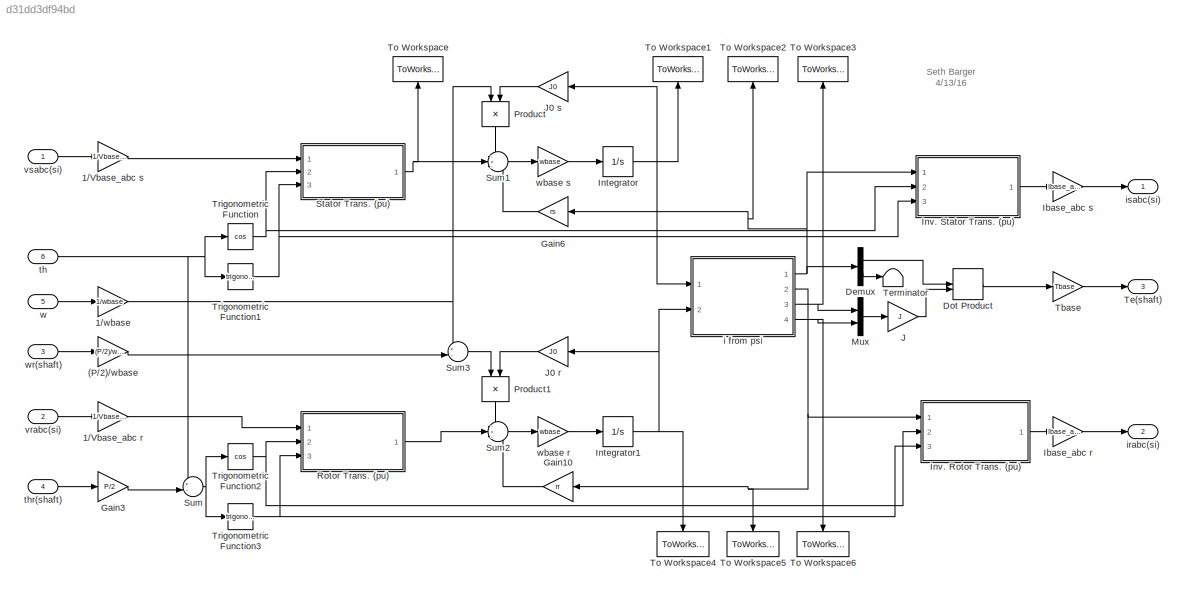
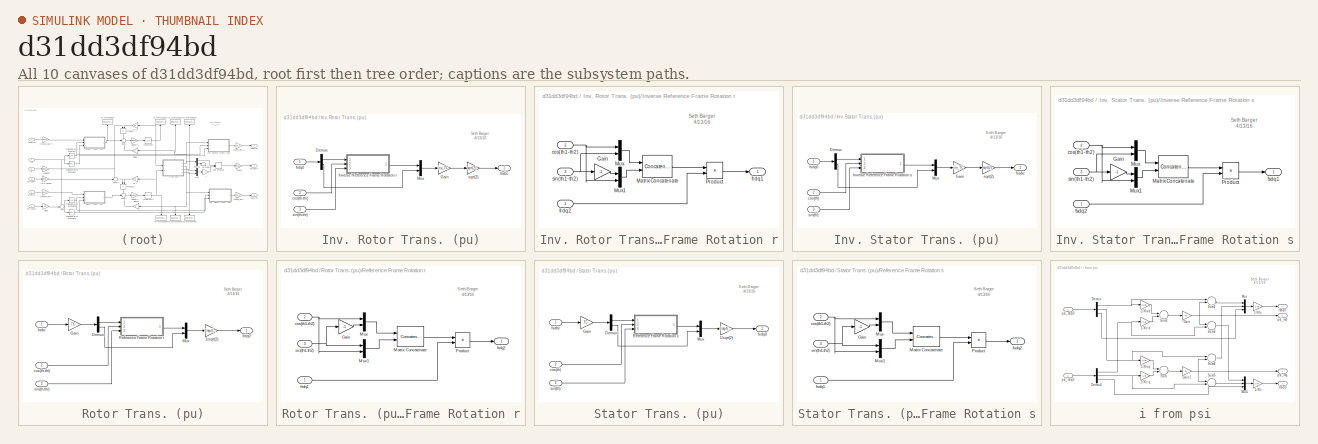
[diagram: thumbnail index - all 10 canvases of the model, root first then tree order]
MODEL slx_d31dd3df94bd
KIND model
CONFIG AbsTol = auto
CONFIG FixedStep = auto
CONFIG MaxStep = auto
CONFIG MinStep = auto
CONFIG RelTol = 1e-3
CONFIG SampleTimeConstraint = Unconstrained
CONFIG Solver = VariableStepAuto
CONFIG SolverMode = Auto
CONFIG SolverName = VariableStepAuto
CONFIG StartTime = 0.0
CONFIG StopTime = 10.0
BLOCK [Gain] (P//2)//wbase
  Gain = (P/2)/wbase
  OutDataTypeStr = Inherit: Inherit via internal rule
  ParamDataTypeStr = Inherit: Inherit via internal rule
  SaturateOnIntegerOverflow = off
BLOCK [Gain] 1//Vbase_abc r
  Gain = 1/Vbase_abc
  OutDataTypeStr = Inherit: Inherit via internal rule
  ParamDataTypeStr = Inherit: Inherit via internal rule
  SaturateOnIntegerOverflow = off
BLOCK [Gain] 1//Vbase_abc s
  Gain = 1/Vbase_abc
  OutDataTypeStr = Inherit: Inherit via internal rule
  ParamDataTypeStr = Inherit: Inherit via internal rule
  SaturateOnIntegerOverflow = off
BLOCK [Gain] 1//wbase
  Gain = 1/wbase
  OutDataTypeStr = Inherit: Inherit via internal rule
  ParamDataTypeStr = Inherit: Inherit via internal rule
  SaturateOnIntegerOverflow = off
BLOCK [Demux] Demux
  DisplayOption = bar
  Outputs = [2,1]
  Ports = [1, 2]
BLOCK [DotProduct] Dot Product
  OutDataTypeStr = Inherit: Inherit via internal rule
BLOCK [Gain] Gain10
  Gain = rr
  OutDataTypeStr = Inherit: Inherit via internal rule
  ParamDataTypeStr = Inherit: Inherit via internal rule
  SaturateOnIntegerOverflow = off
BLOCK [Gain] Gain3
  Gain = P/2
  OutDataTypeStr = Inherit: Inherit via internal rule
  ParamDataTypeStr = Inherit: Inherit via internal rule
  SaturateOnIntegerOverflow = off
BLOCK [Gain] Gain6
  Gain = rs
  OutDataTypeStr = Inherit: Inherit via internal rule
  ParamDataTypeStr = Inherit: Inherit via internal rule
  SaturateOnIntegerOverflow = off
BLOCK [Gain] Ibase_abc r
  Gain = Ibase_abc
  OutDataTypeStr = Inherit: Inherit via internal rule
  ParamDataTypeStr = Inherit: Inherit via internal rule
  SaturateOnIntegerOverflow = off
BLOCK [Gain] Ibase_abc s
  Gain = Ibase_abc
  OutDataTypeStr = Inherit: Inherit via internal rule
  ParamDataTypeStr = Inherit: Inherit via internal rule
  SaturateOnIntegerOverflow = off
BLOCK [Integrator] Integrator
  InitialCondition = psi_sdq0_initial_condition
  Ports = [1, 1]
BLOCK [Integrator] Integrator1
  InitialCondition = psi_rdq0_initial_condition
  Ports = [1, 1]
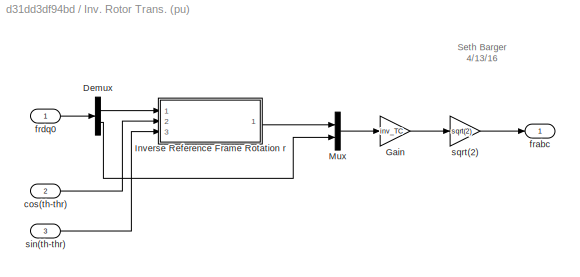
BLOCK [SubSystem] Inv. Rotor Trans. (pu)
  Ports = [3, 1]
  RequestExecContextInheritance = off
  Variant = off
BLOCK [Demux] Inv. Rotor Trans. (pu)/Demux
  DisplayOption = bar
  Outputs = [2,1]
  Ports = [1, 2]
BLOCK [Gain] Inv. Rotor Trans. (pu)/Gain
  Gain = inv_TC
  Multiplication = Matrix(K*u) (u vector)
  OutDataTypeStr = Inherit: Inherit via internal rule
  ParamDataTypeStr = Inherit: Inherit via internal rule
  SaturateOnIntegerOverflow = off
BLOCK [SubSystem] Inv. Rotor Trans. (pu)/Inverse Reference Frame Rotation r
  Ports = [3, 1]
  RequestExecContextInheritance = off
  Variant = off
BLOCK [Gain] Inv. Rotor Trans. (pu)/Inverse Reference Frame Rotation r/Gain
  Gain = -1
  OutDataTypeStr = Inherit: Inherit via internal rule
  ParamDataTypeStr = Inherit: Inherit via internal rule
  SaturateOnIntegerOverflow = off
BLOCK [Concatenate] Inv. Rotor Trans. (pu)/Inverse Reference Frame Rotation r/Matrix Concatenate
  ConcatenateDimension = 2
  Mode = Multidimensional array
  Ports = [2, 1]
BLOCK [Mux] Inv. Rotor Trans. (pu)/Inverse Reference Frame Rotation r/Mux
  DisplayOption = bar
  Inputs = 2
  Ports = [2, 1]
BLOCK [Mux] Inv. Rotor Trans. (pu)/Inverse Reference Frame Rotation r/Mux1
  DisplayOption = bar
  Inputs = 2
  Ports = [2, 1]
BLOCK [Product] Inv. Rotor Trans. (pu)/Inverse Reference Frame Rotation r/Product
  InputSameDT = off
  Multiplication = Matrix(*)
  OutDataTypeStr = Inherit: Inherit via internal rule
  Ports = [2, 1]
  RndMeth = Floor
  SaturateOnIntegerOverflow = off
BLOCK [Inport] Inv. Rotor Trans. (pu)/Inverse Reference Frame Rotation r/cos(th1-th2)
  IconDisplay = Port number
  Port = 2
BLOCK [Outport] Inv. Rotor Trans. (pu)/Inverse Reference Frame Rotation r/frdq1
  IconDisplay = Port number
BLOCK [Inport] Inv. Rotor Trans. (pu)/Inverse Reference Frame Rotation r/frdq2
  IconDisplay = Port number
BLOCK [Inport] Inv. Rotor Trans. (pu)/Inverse Reference Frame Rotation r/sin(th1-th2)
  IconDisplay = Port number
  Port = 3
BLOCK [Mux] Inv. Rotor Trans. (pu)/Mux
  DisplayOption = bar
  Inputs = [2,1]
  Ports = [2, 1]
BLOCK [Inport] Inv. Rotor Trans. (pu)/cos(th-thr)
  IconDisplay = Port number
  Port = 2
BLOCK [Outport] Inv. Rotor Trans. (pu)/frabc
  IconDisplay = Port number
BLOCK [Inport] Inv. Rotor Trans. (pu)/frdq0
  IconDisplay = Port number
BLOCK [Inport] Inv. Rotor Trans. (pu)/sin(th-thr)
  IconDisplay = Port number
  Port = 3
BLOCK [Gain] Inv. Rotor Trans. (pu)/sqrt(2)
  Gain = sqrt(2)
  OutDataTypeStr = Inherit: Inherit via internal rule
  ParamDataTypeStr = Inherit: Inherit via internal rule
  SaturateOnIntegerOverflow = off
BLOCK [SubSystem] Inv. Stator Trans. (pu)
  Ports = [3, 1]
  RequestExecContextInheritance = off
  Variant = off
BLOCK [Demux] Inv. Stator Trans. (pu)/Demux
  DisplayOption = bar
  Outputs = [2,1]
  Ports = [1, 2]
BLOCK [Gain] Inv. Stator Trans. (pu)/Gain
  Gain = inv_TC
  Multiplication = Matrix(K*u) (u vector)
  OutDataTypeStr = Inherit: Inherit via internal rule
  ParamDataTypeStr = Inherit: Inherit via internal rule
  SaturateOnIntegerOverflow = off
BLOCK [SubSystem] Inv. Stator Trans. (pu)/Inverse Reference Frame Rotation s
  Ports = [3, 1]
  RequestExecContextInheritance = off
  Variant = off
BLOCK [Gain] Inv. Stator Trans. (pu)/Inverse Reference Frame Rotation s/Gain
  Gain = -1
  OutDataTypeStr = Inherit: Inherit via internal rule
  ParamDataTypeStr = Inherit: Inherit via internal rule
  SaturateOnIntegerOverflow = off
BLOCK [Concatenate] Inv. Stator Trans. (pu)/Inverse Reference Frame Rotation s/Matrix Concatenate
  ConcatenateDimension = 2
  Mode = Multidimensional array
  Ports = [2, 1]
BLOCK [Mux] Inv. Stator Trans. (pu)/Inverse Reference Frame Rotation s/Mux
  DisplayOption = bar
  Inputs = 2
  Ports = [2, 1]
BLOCK [Mux] Inv. Stator Trans. (pu)/Inverse Reference Frame Rotation s/Mux1
  DisplayOption = bar
  Inputs = 2
  Ports = [2, 1]
BLOCK [Product] Inv. Stator Trans. (pu)/Inverse Reference Frame Rotation s/Product
  InputSameDT = off
  Multiplication = Matrix(*)
  OutDataTypeStr = Inherit: Inherit via internal rule
  Ports = [2, 1]
  RndMeth = Floor
  SaturateOnIntegerOverflow = off
BLOCK [Inport] Inv. Stator Trans. (pu)/Inverse Reference Frame Rotation s/cos(th1-th2)
  IconDisplay = Port number
  Port = 2
BLOCK [Outport] Inv. Stator Trans. (pu)/Inverse Reference Frame Rotation s/fsdq1
  IconDisplay = Port number
BLOCK [Inport] Inv. Stator Trans. (pu)/Inverse Reference Frame Rotation s/fsdq2
  IconDisplay = Port number
BLOCK [Inport] Inv. Stator Trans. (pu)/Inverse Reference Frame Rotation s/sin(th1-th2)
  IconDisplay = Port number
  Port = 3
BLOCK [Mux] Inv. Stator Trans. (pu)/Mux
  DisplayOption = bar
  Inputs = [2,1]
  Ports = [2, 1]
BLOCK [Inport] Inv. Stator Trans. (pu)/cos(th)
  IconDisplay = Port number
  Port = 2
BLOCK [Outport] Inv. Stator Trans. (pu)/fsabc
  IconDisplay = Port number
BLOCK [Inport] Inv. Stator Trans. (pu)/fsdq0
  IconDisplay = Port number
BLOCK [Inport] Inv. Stator Trans. (pu)/sin(th)
  IconDisplay = Port number
  Port = 3
BLOCK [Gain] Inv. Stator Trans. (pu)/sqrt(2)
  Gain = sqrt(2)
  OutDataTypeStr = Inherit: Inherit via internal rule
  ParamDataTypeStr = Inherit: Inherit via internal rule
  SaturateOnIntegerOverflow = off
BLOCK [Gain] J 
  Gain = J
  Multiplication = Matrix(K*u) (u vector)
  OutDataTypeStr = Inherit: Inherit via internal rule
  ParamDataTypeStr = Inherit: Inherit via internal rule
  SaturateOnIntegerOverflow = off
BLOCK [Gain] J0 r
  Gain = J0
  Multiplication = Matrix(K*u) (u vector)
  OutDataTypeStr = Inherit: Inherit via internal rule
  ParamDataTypeStr = Inherit: Inherit via internal rule
  SaturateOnIntegerOverflow = off
BLOCK [Gain] J0 s
  Gain = J0
  Multiplication = Matrix(K*u) (u vector)
  OutDataTypeStr = Inherit: Inherit via internal rule
  ParamDataTypeStr = Inherit: Inherit via internal rule
  SaturateOnIntegerOverflow = off
BLOCK [Mux] Mux
  DisplayOption = bar
  Inputs = 2
  Ports = [2, 1]
BLOCK [Product] Product
  InputSameDT = off
  OutDataTypeStr = Inherit: Inherit via internal rule
  Ports = [2, 1]
  RndMeth = Floor
  SaturateOnIntegerOverflow = off
BLOCK [Product] Product1
  InputSameDT = off
  OutDataTypeStr = Inherit: Inherit via internal rule
  Ports = [2, 1]
  RndMeth = Floor
  SaturateOnIntegerOverflow = off
BLOCK [SubSystem] Rotor Trans. (pu)
  Ports = [3, 1]
  RequestExecContextInheritance = off
  Variant = off
BLOCK [Gain] Rotor Trans. (pu)/1//sqrt(2)
  Gain = 1/sqrt(2)
  OutDataTypeStr = Inherit: Inherit via internal rule
  ParamDataTypeStr = Inherit: Inherit via internal rule
  SaturateOnIntegerOverflow = off
BLOCK [Demux] Rotor Trans. (pu)/Demux
  DisplayOption = bar
  Outputs = 2
  Ports = [1, 2]
BLOCK [Gain] Rotor Trans. (pu)/Gain
  Gain = TC
  Multiplication = Matrix(K*u) (u vector)
  OutDataTypeStr = Inherit: Inherit via internal rule
  ParamDataTypeStr = Inherit: Inherit via internal rule
  SaturateOnIntegerOverflow = off
BLOCK [Mux] Rotor Trans. (pu)/Mux
  DisplayOption = bar
  Inputs = [2,1]
  Ports = [2, 1]
BLOCK [SubSystem] Rotor Trans. (pu)/Reference Frame Rotation r
  Ports = [3, 1]
  RequestExecContextInheritance = off
  Variant = off
BLOCK [Gain] Rotor Trans. (pu)/Reference Frame Rotation r/Gain
  Gain = -1
  OutDataTypeStr = Inherit: Inherit via internal rule
  ParamDataTypeStr = Inherit: Inherit via internal rule
  SaturateOnIntegerOverflow = off
BLOCK [Concatenate] Rotor Trans. (pu)/Reference Frame Rotation r/Matrix Concatenate
  ConcatenateDimension = 2
  Mode = Multidimensional array
  Ports = [2, 1]
BLOCK [Mux] Rotor Trans. (pu)/Reference Frame Rotation r/Mux
  DisplayOption = bar
  Inputs = 2
  Ports = [2, 1]
BLOCK [Mux] Rotor Trans. (pu)/Reference Frame Rotation r/Mux1
  DisplayOption = bar
  Inputs = 2
  Ports = [2, 1]
BLOCK [Product] Rotor Trans. (pu)/Reference Frame Rotation r/Product
  InputSameDT = off
  Multiplication = Matrix(*)
  OutDataTypeStr = Inherit: Inherit via internal rule
  Ports = [2, 1]
  RndMeth = Floor
  SaturateOnIntegerOverflow = off
BLOCK [Inport] Rotor Trans. (pu)/Reference Frame Rotation r/cos(th1-th2)
  IconDisplay = Port number
  Port = 2
BLOCK [Inport] Rotor Trans. (pu)/Reference Frame Rotation r/frdq1
  IconDisplay = Port number
BLOCK [Outport] Rotor Trans. (pu)/Reference Frame Rotation r/frdq2
  IconDisplay = Port number
BLOCK [Inport] Rotor Trans. (pu)/Reference Frame Rotation r/sin(th1-th2)
  IconDisplay = Port number
  Port = 3
BLOCK [Inport] Rotor Trans. (pu)/cos(th-thr)
  IconDisplay = Port number
  Port = 2
BLOCK [Inport] Rotor Trans. (pu)/frabc
  IconDisplay = Port number
BLOCK [Outport] Rotor Trans. (pu)/frdq0
  IconDisplay = Port number
BLOCK [Inport] Rotor Trans. (pu)/sin(th-thr)
  IconDisplay = Port number
  Port = 3
BLOCK [SubSystem] Stator Trans. (pu)
  Ports = [3, 1]
  RequestExecContextInheritance = off
  Variant = off
BLOCK [Gain] Stator Trans. (pu)/1//sqrt(2)
  Gain = 1/sqrt(2)
  OutDataTypeStr = Inherit: Inherit via internal rule
  ParamDataTypeStr = Inherit: Inherit via internal rule
  SaturateOnIntegerOverflow = off
BLOCK [Demux] Stator Trans. (pu)/Demux
  DisplayOption = bar
  Outputs = 2
  Ports = [1, 2]
BLOCK [Gain] Stator Trans. (pu)/Gain
  Gain = TC
  Multiplication = Matrix(K*u) (u vector)
  OutDataTypeStr = Inherit: Inherit via internal rule
  ParamDataTypeStr = Inherit: Inherit via internal rule
  SaturateOnIntegerOverflow = off
BLOCK [Mux] Stator Trans. (pu)/Mux
  DisplayOption = bar
  Inputs = [2,1]
  Ports = [2, 1]
BLOCK [SubSystem] Stator Trans. (pu)/Reference Frame Rotation s
  Ports = [3, 1]
  RequestExecContextInheritance = off
  Variant = off
BLOCK [Gain] Stator Trans. (pu)/Reference Frame Rotation s/Gain
  Gain = -1
  OutDataTypeStr = Inherit: Inherit via internal rule
  ParamDataTypeStr = Inherit: Inherit via internal rule
  SaturateOnIntegerOverflow = off
BLOCK [Concatenate] Stator Trans. (pu)/Reference Frame Rotation s/Matrix Concatenate
  ConcatenateDimension = 2
  Mode = Multidimensional array
  Ports = [2, 1]
BLOCK [Mux] Stator Trans. (pu)/Reference Frame Rotation s/Mux
  DisplayOption = bar
  Inputs = 2
  Ports = [2, 1]
BLOCK [Mux] Stator Trans. (pu)/Reference Frame Rotation s/Mux1
  DisplayOption = bar
  Inputs = 2
  Ports = [2, 1]
BLOCK [Product] Stator Trans. (pu)/Reference Frame Rotation s/Product
  InputSameDT = off
  Multiplication = Matrix(*)
  OutDataTypeStr = Inherit: Inherit via internal rule
  Ports = [2, 1]
  RndMeth = Floor
  SaturateOnIntegerOverflow = off
BLOCK [Inport] Stator Trans. (pu)/Reference Frame Rotation s/cos(th1-th2)
  IconDisplay = Port number
  Port = 2
BLOCK [Inport] Stator Trans. (pu)/Reference Frame Rotation s/fsdq1
  IconDisplay = Port number
BLOCK [Outport] Stator Trans. (pu)/Reference Frame Rotation s/fsdq2
  IconDisplay = Port number
BLOCK [Inport] Stator Trans. (pu)/Reference Frame Rotation s/sin(th1-th2)
  IconDisplay = Port number
  Port = 3
BLOCK [Inport] Stator Trans. (pu)/cos(th)
  IconDisplay = Port number
  Port = 2
BLOCK [Inport] Stator Trans. (pu)/fsabc
  IconDisplay = Port number
BLOCK [Outport] Stator Trans. (pu)/fsdq0
  IconDisplay = Port number
BLOCK [Inport] Stator Trans. (pu)/sin(th)
  IconDisplay = Port number
  Port = 3
BLOCK [Sum] Sum
  IconShape = round
  InputSameDT = off
  Inputs = +-|
  OutDataTypeStr = Inherit: Inherit via internal rule
  Ports = [2, 1]
  SaturateOnIntegerOverflow = off
BLOCK [Sum] Sum1
  IconShape = round
  InputSameDT = off
  Inputs = -+-
  OutDataTypeStr = Inherit: Inherit via internal rule
  Ports = [3, 1]
  SaturateOnIntegerOverflow = off
BLOCK [Sum] Sum2
  IconShape = round
  InputSameDT = off
  Inputs = -+-
  OutDataTypeStr = Inherit: Inherit via internal rule
  Ports = [3, 1]
  SaturateOnIntegerOverflow = off
BLOCK [Sum] Sum3
  IconShape = round
  InputSameDT = off
  Inputs = +-|
  OutDataTypeStr = Inherit: Inherit via internal rule
  Ports = [2, 1]
  SaturateOnIntegerOverflow = off
BLOCK [Gain] Tbase
  Gain = Tbase
  OutDataTypeStr = Inherit: Inherit via internal rule
  ParamDataTypeStr = Inherit: Inherit via internal rule
  SaturateOnIntegerOverflow = off
BLOCK [Outport] Te(shaft)
  IconDisplay = Port number
  Port = 3
BLOCK [Terminator] Terminator
BLOCK [ToWorkspace] To Workspace
  FixptAsFi = on
  MaxDataPoints = inf
  Ports = [1]
  SampleTime = -1
  Save2DSignal = 3-D array (concatenate along third dimension)
  VariableName = vsdq0
BLOCK [ToWorkspace] To Workspace1
  FixptAsFi = on
  MaxDataPoints = inf
  Ports = [1]
  SampleTime = -1
  Save2DSignal = 3-D array (concatenate along third dimension)
  VariableName = psi_sdq0
BLOCK [ToWorkspace] To Workspace2
  FixptAsFi = on
  MaxDataPoints = inf
  Ports = [1]
  SampleTime = -1
  Save2DSignal = 3-D array (concatenate along third dimension)
  VariableName = isdq0
BLOCK [ToWorkspace] To Workspace3
  FixptAsFi = on
  MaxDataPoints = inf
  Ports = [1]
  SampleTime = -1
  Save2DSignal = 3-D array (concatenate along third dimension)
  VariableName = psi_md
BLOCK [ToWorkspace] To Workspace4
  FixptAsFi = on
  MaxDataPoints = inf
  Ports = [1]
  SampleTime = -1
  Save2DSignal = 3-D array (concatenate along third dimension)
  VariableName = psi_rdq0
BLOCK [ToWorkspace] To Workspace5
  FixptAsFi = on
  MaxDataPoints = inf
  Ports = [1]
  SampleTime = -1
  Save2DSignal = 3-D array (concatenate along third dimension)
  VariableName = irdq0
BLOCK [ToWorkspace] To Workspace6
  FixptAsFi = on
  MaxDataPoints = inf
  Ports = [1]
  SampleTime = -1
  Save2DSignal = 3-D array (concatenate along third dimension)
  VariableName = psi_mq
BLOCK [Trigonometry] Trigonometric Function
  Operator = cos
  Ports = [1, 1]
BLOCK [Trigonometry] Trigonometric Function1
  Ports = [1, 1]
BLOCK [Trigonometry] Trigonometric Function2
  Operator = cos
  Ports = [1, 1]
BLOCK [Trigonometry] Trigonometric Function3
  Ports = [1, 1]
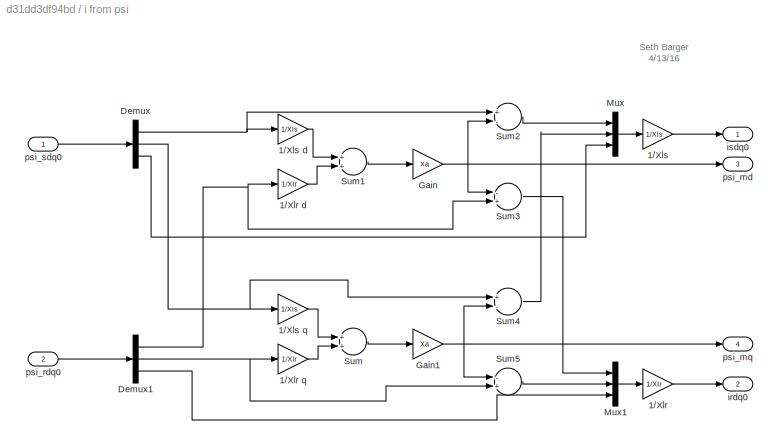
BLOCK [SubSystem] i from psi
  Ports = [2, 4]
  RequestExecContextInheritance = off
  Variant = off
BLOCK [Gain] i from psi/1//Xlr
  Gain = 1/Xlr
  OutDataTypeStr = Inherit: Inherit via internal rule
  ParamDataTypeStr = Inherit: Inherit via internal rule
  SaturateOnIntegerOverflow = off
BLOCK [Gain] i from psi/1//Xlr d
  Gain = 1/Xlr
  OutDataTypeStr = Inherit: Inherit via internal rule
  ParamDataTypeStr = Inherit: Inherit via internal rule
  SaturateOnIntegerOverflow = off
BLOCK [Gain] i from psi/1//Xlr q
  Gain = 1/Xlr
  OutDataTypeStr = Inherit: Inherit via internal rule
  ParamDataTypeStr = Inherit: Inherit via internal rule
  SaturateOnIntegerOverflow = off
BLOCK [Gain] i from psi/1//Xls
  Gain = 1/Xls
  OutDataTypeStr = Inherit: Inherit via internal rule
  ParamDataTypeStr = Inherit: Inherit via internal rule
  SaturateOnIntegerOverflow = off
BLOCK [Gain] i from psi/1//Xls d
  Gain = 1/Xls
  OutDataTypeStr = Inherit: Inherit via internal rule
  ParamDataTypeStr = Inherit: Inherit via internal rule
  SaturateOnIntegerOverflow = off
BLOCK [Gain] i from psi/1//Xls q
  Gain = 1/Xls
  OutDataTypeStr = Inherit: Inherit via internal rule
  ParamDataTypeStr = Inherit: Inherit via internal rule
  SaturateOnIntegerOverflow = off
BLOCK [Demux] i from psi/Demux
  DisplayOption = bar
  Outputs = 3
  Ports = [1, 3]
BLOCK [Demux] i from psi/Demux1
  DisplayOption = bar
  Outputs = 3
  Ports = [1, 3]
BLOCK [Gain] i from psi/Gain
  Gain = Xa
  OutDataTypeStr = Inherit: Inherit via internal rule
  ParamDataTypeStr = Inherit: Inherit via internal rule
  SaturateOnIntegerOverflow = off
BLOCK [Gain] i from psi/Gain1
  Gain = Xa
  OutDataTypeStr = Inherit: Inherit via internal rule
  ParamDataTypeStr = Inherit: Inherit via internal rule
  SaturateOnIntegerOverflow = off
BLOCK [Mux] i from psi/Mux
  DisplayOption = bar
  Inputs = 3
  Ports = [3, 1]
BLOCK [Mux] i from psi/Mux1
  DisplayOption = bar
  Inputs = 3
  Ports = [3, 1]
BLOCK [Sum] i from psi/Sum
  InputSameDT = off
  OutDataTypeStr = Inherit: Inherit via internal rule
  Ports = [2, 1]
  SaturateOnIntegerOverflow = off
BLOCK [Sum] i from psi/Sum1
  InputSameDT = off
  OutDataTypeStr = Inherit: Inherit via internal rule
  Ports = [2, 1]
  SaturateOnIntegerOverflow = off
BLOCK [Sum] i from psi/Sum2
  InputSameDT = off
  Inputs = +-
  OutDataTypeStr = Inherit: Inherit via internal rule
  Ports = [2, 1]
  SaturateOnIntegerOverflow = off
BLOCK [Sum] i from psi/Sum3
  InputSameDT = off
  Inputs = -+
  OutDataTypeStr = Inherit: Inherit via internal rule
  Ports = [2, 1]
  SaturateOnIntegerOverflow = off
BLOCK [Sum] i from psi/Sum4
  InputSameDT = off
  Inputs = +-
  OutDataTypeStr = Inherit: Inherit via internal rule
  Ports = [2, 1]
  SaturateOnIntegerOverflow = off
BLOCK [Sum] i from psi/Sum5
  InputSameDT = off
  Inputs = -+
  OutDataTypeStr = Inherit: Inherit via internal rule
  Ports = [2, 1]
  SaturateOnIntegerOverflow = off
BLOCK [Outport] i from psi/irdq0
  IconDisplay = Port number
  Port = 2
BLOCK [Outport] i from psi/isdq0
  IconDisplay = Port number
BLOCK [Outport] i from psi/psi_md
  IconDisplay = Port number
  Port = 3
BLOCK [Outport] i from psi/psi_mq
  IconDisplay = Port number
  Port = 4
BLOCK [Inport] i from psi/psi_rdq0
  IconDisplay = Port number
  Port = 2
BLOCK [Inport] i from psi/psi_sdq0
  IconDisplay = Port number
BLOCK [Outport] irabc(si)
  IconDisplay = Port number
  Port = 2
BLOCK [Outport] isabc(si)
  IconDisplay = Port number
BLOCK [Inport] th
  IconDisplay = Port number
  Port = 6
BLOCK [Inport] thr(shaft)
  IconDisplay = Port number
  Port = 4
BLOCK [Inport] vrabc(si)
  IconDisplay = Port number
  Port = 2
BLOCK [Inport] vsabc(si)
  IconDisplay = Port number
BLOCK [Inport] w
  IconDisplay = Port number
  Port = 5
BLOCK [Gain] wbase r
  Gain = wbase
  OutDataTypeStr = Inherit: Inherit via internal rule
  ParamDataTypeStr = Inherit: Inherit via internal rule
  SaturateOnIntegerOverflow = off
BLOCK [Gain] wbase s
  Gain = wbase
  OutDataTypeStr = Inherit: Inherit via internal rule
  ParamDataTypeStr = Inherit: Inherit via internal rule
  SaturateOnIntegerOverflow = off
BLOCK [Inport] wr(shaft)
  IconDisplay = Port number
  Port = 3
ANNOTATION (root): Seth Barger 4/13/16
ANNOTATION Inv. Rotor Trans. (pu): Seth Barger 4/13/16
ANNOTATION Inv. Rotor Trans. (pu)/Inverse Reference Frame Rotation r: Seth Barger 4/13/16
ANNOTATION Inv. Stator Trans. (pu): Seth Barger 4/13/16
ANNOTATION Inv. Stator Trans. (pu)/Inverse Reference Frame Rotation s: Seth Barger 4/13/16
ANNOTATION Rotor Trans. (pu): Seth Barger 4/13/16
ANNOTATION Rotor Trans. (pu)/Reference Frame Rotation r: Seth Barger 4/13/16
ANNOTATION Stator Trans. (pu): Seth Barger 4/13/16
ANNOTATION Stator Trans. (pu)/Reference Frame Rotation s: Seth Barger 4/13/16
ANNOTATION i from psi: Seth Barger 4/13/16
LINE (P//2)//wbase:1 -> Sum3:2
LINE 1//Vbase_abc r:1 -> Rotor Trans. (pu):1
LINE 1//Vbase_abc s:1 -> Stator Trans. (pu):1
NET 1//wbase:1 -> Product:1, Sum3:1
LINE Demux:1 -> Dot Product:1
LINE Demux:2 -> Terminator:1
LINE Dot Product:1 -> Tbase:1
LINE Gain10:1 -> Sum2:3
LINE Gain3:1 -> Sum:2
LINE Gain6:1 -> Sum1:3
LINE Ibase_abc r:1 -> irabc(si):1
LINE Ibase_abc s:1 -> isabc(si):1
NET Integrator1:1 -> J0 r:1, To Workspace4:1, i from psi:2
NET Integrator:1 -> J0 s:1, To Workspace1:1, i from psi:1
LINE Inv. Rotor Trans. (pu)/Demux:1 -> Inv. Rotor Trans. (pu)/Inverse Reference Frame Rotation r:1
LINE Inv. Rotor Trans. (pu)/Demux:2 -> Inv. Rotor Trans. (pu)/Mux:2
LINE Inv. Rotor Trans. (pu)/Gain:1 -> Inv. Rotor Trans. (pu)/sqrt(2):1
LINE Inv. Rotor Trans. (pu)/Inverse Reference Frame Rotation r/Gain:1 -> Inv. Rotor Trans. (pu)/Inverse Reference Frame Rotation r/Mux1:1
LINE Inv. Rotor Trans. (pu)/Inverse Reference Frame Rotation r/Matrix Concatenate:1 -> Inv. Rotor Trans. (pu)/Inverse Reference Frame Rotation r/Product:1
LINE Inv. Rotor Trans. (pu)/Inverse Reference Frame Rotation r/Mux1:1 -> Inv. Rotor Trans. (pu)/Inverse Reference Frame Rotation r/Matrix Concatenate:2
LINE Inv. Rotor Trans. (pu)/Inverse Reference Frame Rotation r/Mux:1 -> Inv. Rotor Trans. (pu)/Inverse Reference Frame Rotation r/Matrix Concatenate:1
LINE Inv. Rotor Trans. (pu)/Inverse Reference Frame Rotation r/Product:1 -> Inv. Rotor Trans. (pu)/Inverse Reference Frame Rotation r/frdq1:1
NET Inv. Rotor Trans. (pu)/Inverse Reference Frame Rotation r/cos(th1-th2):1 -> Inv. Rotor Trans. (pu)/Inverse Reference Frame Rotation r/Mux1:2, Inv. Rotor Trans. (pu)/Inverse Reference Frame Rotation r/Mux:1
LINE Inv. Rotor Trans. (pu)/Inverse Reference Frame Rotation r/frdq2:1 -> Inv. Rotor Trans. (pu)/Inverse Reference Frame Rotation r/Product:2
NET Inv. Rotor Trans. (pu)/Inverse Reference Frame Rotation r/sin(th1-th2):1 -> Inv. Rotor Trans. (pu)/Inverse Reference Frame Rotation r/Gain:1, Inv. Rotor Trans. (pu)/Inverse Reference Frame Rotation r/Mux:2
LINE Inv. Rotor Trans. (pu)/Inverse Reference Frame Rotation r:1 -> Inv. Rotor Trans. (pu)/Mux:1
LINE Inv. Rotor Trans. (pu)/Mux:1 -> Inv. Rotor Trans. (pu)/Gain:1
LINE Inv. Rotor Trans. (pu)/cos(th-thr):1 -> Inv. Rotor Trans. (pu)/Inverse Reference Frame Rotation r:2
LINE Inv. Rotor Trans. (pu)/frdq0:1 -> Inv. Rotor Trans. (pu)/Demux:1
LINE Inv. Rotor Trans. (pu)/sin(th-thr):1 -> Inv. Rotor Trans. (pu)/Inverse Reference Frame Rotation r:3
LINE Inv. Rotor Trans. (pu)/sqrt(2):1 -> Inv. Rotor Trans. (pu)/frabc:1
LINE Inv. Rotor Trans. (pu):1 -> Ibase_abc r:1
LINE Inv. Stator Trans. (pu)/Demux:1 -> Inv. Stator Trans. (pu)/Inverse Reference Frame Rotation s:1
LINE Inv. Stator Trans. (pu)/Demux:2 -> Inv. Stator Trans. (pu)/Mux:2
LINE Inv. Stator Trans. (pu)/Gain:1 -> Inv. Stator Trans. (pu)/sqrt(2):1
LINE Inv. Stator Trans. (pu)/Inverse Reference Frame Rotation s/Gain:1 -> Inv. Stator Trans. (pu)/Inverse Reference Frame Rotation s/Mux1:1
LINE Inv. Stator Trans. (pu)/Inverse Reference Frame Rotation s/Matrix Concatenate:1 -> Inv. Stator Trans. (pu)/Inverse Reference Frame Rotation s/Product:1
LINE Inv. Stator Trans. (pu)/Inverse Reference Frame Rotation s/Mux1:1 -> Inv. Stator Trans. (pu)/Inverse Reference Frame Rotation s/Matrix Concatenate:2
LINE Inv. Stator Trans. (pu)/Inverse Reference Frame Rotation s/Mux:1 -> Inv. Stator Trans. (pu)/Inverse Reference Frame Rotation s/Matrix Concatenate:1
LINE Inv. Stator Trans. (pu)/Inverse Reference Frame Rotation s/Product:1 -> Inv. Stator Trans. (pu)/Inverse Reference Frame Rotation s/fsdq1:1
NET Inv. Stator Trans. (pu)/Inverse Reference Frame Rotation s/cos(th1-th2):1 -> Inv. Stator Trans. (pu)/Inverse Reference Frame Rotation s/Mux1:2, Inv. Stator Trans. (pu)/Inverse Reference Frame Rotation s/Mux:1
LINE Inv. Stator Trans. (pu)/Inverse Reference Frame Rotation s/fsdq2:1 -> Inv. Stator Trans. (pu)/Inverse Reference Frame Rotation s/Product:2
NET Inv. Stator Trans. (pu)/Inverse Reference Frame Rotation s/sin(th1-th2):1 -> Inv. Stator Trans. (pu)/Inverse Reference Frame Rotation s/Gain:1, Inv. Stator Trans. (pu)/Inverse Reference Frame Rotation s/Mux:2
LINE Inv. Stator Trans. (pu)/Inverse Reference Frame Rotation s:1 -> Inv. Stator Trans. (pu)/Mux:1
LINE Inv. Stator Trans. (pu)/Mux:1 -> Inv. Stator Trans. (pu)/Gain:1
LINE Inv. Stator Trans. (pu)/cos(th):1 -> Inv. Stator Trans. (pu)/Inverse Reference Frame Rotation s:2
LINE Inv. Stator Trans. (pu)/fsdq0:1 -> Inv. Stator Trans. (pu)/Demux:1
LINE Inv. Stator Trans. (pu)/sin(th):1 -> Inv. Stator Trans. (pu)/Inverse Reference Frame Rotation s:3
LINE Inv. Stator Trans. (pu)/sqrt(2):1 -> Inv. Stator Trans. (pu)/fsabc:1
LINE Inv. Stator Trans. (pu):1 -> Ibase_abc s:1
LINE J :1 -> Dot Product:2
LINE J0 r:1 -> Product1:2
LINE J0 s:1 -> Product:2
LINE Mux:1 -> J :1
LINE Product1:1 -> Sum2:1
LINE Product:1 -> Sum1:1
LINE Rotor Trans. (pu)/1//sqrt(2):1 -> Rotor Trans. (pu)/frdq0:1
LINE Rotor Trans. (pu)/Demux:1 -> Rotor Trans. (pu)/Reference Frame Rotation r:1
LINE Rotor Trans. (pu)/Demux:2 -> Rotor Trans. (pu)/Mux:2
LINE Rotor Trans. (pu)/Gain:1 -> Rotor Trans. (pu)/Demux:1
LINE Rotor Trans. (pu)/Mux:1 -> Rotor Trans. (pu)/1//sqrt(2):1
LINE Rotor Trans. (pu)/Reference Frame Rotation r/Gain:1 -> Rotor Trans. (pu)/Reference Frame Rotation r/Mux:2
LINE Rotor Trans. (pu)/Reference Frame Rotation r/Matrix Concatenate:1 -> Rotor Trans. (pu)/Reference Frame Rotation r/Product:1
LINE Rotor Trans. (pu)/Reference Frame Rotation r/Mux1:1 -> Rotor Trans. (pu)/Reference Frame Rotation r/Matrix Concatenate:2
LINE Rotor Trans. (pu)/Reference Frame Rotation r/Mux:1 -> Rotor Trans. (pu)/Reference Frame Rotation r/Matrix Concatenate:1
LINE Rotor Trans. (pu)/Reference Frame Rotation r/Product:1 -> Rotor Trans. (pu)/Reference Frame Rotation r/frdq2:1
NET Rotor Trans. (pu)/Reference Frame Rotation r/cos(th1-th2):1 -> Rotor Trans. (pu)/Reference Frame Rotation r/Mux1:2, Rotor Trans. (pu)/Reference Frame Rotation r/Mux:1
LINE Rotor Trans. (pu)/Reference Frame Rotation r/frdq1:1 -> Rotor Trans. (pu)/Reference Frame Rotation r/Product:2
NET Rotor Trans. (pu)/Reference Frame Rotation r/sin(th1-th2):1 -> Rotor Trans. (pu)/Reference Frame Rotation r/Gain:1, Rotor Trans. (pu)/Reference Frame Rotation r/Mux1:1
LINE Rotor Trans. (pu)/Reference Frame Rotation r:1 -> Rotor Trans. (pu)/Mux:1
LINE Rotor Trans. (pu)/cos(th-thr):1 -> Rotor Trans. (pu)/Reference Frame Rotation r:2
LINE Rotor Trans. (pu)/frabc:1 -> Rotor Trans. (pu)/Gain:1
LINE Rotor Trans. (pu)/sin(th-thr):1 -> Rotor Trans. (pu)/Reference Frame Rotation r:3
LINE Rotor Trans. (pu):1 -> Sum2:2
LINE Stator Trans. (pu)/1//sqrt(2):1 -> Stator Trans. (pu)/fsdq0:1
LINE Stator Trans. (pu)/Demux:1 -> Stator Trans. (pu)/Reference Frame Rotation s:1
LINE Stator Trans. (pu)/Demux:2 -> Stator Trans. (pu)/Mux:2
LINE Stator Trans. (pu)/Gain:1 -> Stator Trans. (pu)/Demux:1
LINE Stator Trans. (pu)/Mux:1 -> Stator Trans. (pu)/1//sqrt(2):1
LINE Stator Trans. (pu)/Reference Frame Rotation s/Gain:1 -> Stator Trans. (pu)/Reference Frame Rotation s/Mux:2
LINE Stator Trans. (pu)/Reference Frame Rotation s/Matrix Concatenate:1 -> Stator Trans. (pu)/Reference Frame Rotation s/Product:1
LINE Stator Trans. (pu)/Reference Frame Rotation s/Mux1:1 -> Stator Trans. (pu)/Reference Frame Rotation s/Matrix Concatenate:2
LINE Stator Trans. (pu)/Reference Frame Rotation s/Mux:1 -> Stator Trans. (pu)/Reference Frame Rotation s/Matrix Concatenate:1
LINE Stator Trans. (pu)/Reference Frame Rotation s/Product:1 -> Stator Trans. (pu)/Reference Frame Rotation s/fsdq2:1
NET Stator Trans. (pu)/Reference Frame Rotation s/cos(th1-th2):1 -> Stator Trans. (pu)/Reference Frame Rotation s/Mux1:2, Stator Trans. (pu)/Reference Frame Rotation s/Mux:1
LINE Stator Trans. (pu)/Reference Frame Rotation s/fsdq1:1 -> Stator Trans. (pu)/Reference Frame Rotation s/Product:2
NET Stator Trans. (pu)/Reference Frame Rotation s/sin(th1-th2):1 -> Stator Trans. (pu)/Reference Frame Rotation s/Gain:1, Stator Trans. (pu)/Reference Frame Rotation s/Mux1:1
LINE Stator Trans. (pu)/Reference Frame Rotation s:1 -> Stator Trans. (pu)/Mux:1
LINE Stator Trans. (pu)/cos(th):1 -> Stator Trans. (pu)/Reference Frame Rotation s:2
LINE Stator Trans. (pu)/fsabc:1 -> Stator Trans. (pu)/Gain:1
LINE Stator Trans. (pu)/sin(th):1 -> Stator Trans. (pu)/Reference Frame Rotation s:3
NET Stator Trans. (pu):1 -> Sum1:2, To Workspace:1
LINE Sum1:1 -> wbase s:1
LINE Sum2:1 -> wbase r:1
LINE Sum3:1 -> Product1:1
NET Sum:1 -> Trigonometric Function2:1, Trigonometric Function3:1
LINE Tbase:1 -> Te(shaft):1
NET Trigonometric Function1:1 -> Inv. Stator Trans. (pu):3, Stator Trans. (pu):3
NET Trigonometric Function2:1 -> Inv. Rotor Trans. (pu):2, Rotor Trans. (pu):2
NET Trigonometric Function3:1 -> Inv. Rotor Trans. (pu):3, Rotor Trans. (pu):3
NET Trigonometric Function:1 -> Inv. Stator Trans. (pu):2, Stator Trans. (pu):2
LINE i from psi/1//Xlr d:1 -> i from psi/Sum1:2
LINE i from psi/1//Xlr q:1 -> i from psi/Sum:2
LINE i from psi/1//Xlr:1 -> i from psi/irdq0:1
LINE i from psi/1//Xls d:1 -> i from psi/Sum1:1
LINE i from psi/1//Xls q:1 -> i from psi/Sum:1
LINE i from psi/1//Xls:1 -> i from psi/isdq0:1
NET i from psi/Demux1:1 -> i from psi/1//Xlr d:1, i from psi/Sum3:2
NET i from psi/Demux1:2 -> i from psi/1//Xlr q:1, i from psi/Sum5:2
LINE i from psi/Demux1:3 -> i from psi/Mux1:3
NET i from psi/Demux:1 -> i from psi/1//Xls d:1, i from psi/Sum2:1
NET i from psi/Demux:2 -> i from psi/1//Xls q:1, i from psi/Sum4:1
LINE i from psi/Demux:3 -> i from psi/Mux:3
NET i from psi/Gain1:1 -> i from psi/Sum4:2, i from psi/Sum5:1, i from psi/psi_mq:1
NET i from psi/Gain:1 -> i from psi/Sum2:2, i from psi/Sum3:1, i from psi/psi_md:1
LINE i from psi/Mux1:1 -> i from psi/1//Xlr:1
LINE i from psi/Mux:1 -> i from psi/1//Xls:1
LINE i from psi/Sum1:1 -> i from psi/Gain:1
LINE i from psi/Sum2:1 -> i from psi/Mux:1
LINE i from psi/Sum3:1 -> i from psi/Mux1:1
LINE i from psi/Sum4:1 -> i from psi/Mux:2
LINE i from psi/Sum5:1 -> i from psi/Mux1:2
LINE i from psi/Sum:1 -> i from psi/Gain1:1
LINE i from psi/psi_rdq0:1 -> i from psi/Demux1:1
LINE i from psi/psi_sdq0:1 -> i from psi/Demux:1
NET i from psi:1 -> Demux:1, Gain6:1, Inv. Stator Trans. (pu):1, To Workspace2:1
NET i from psi:2 -> Gain10:1, Inv. Rotor Trans. (pu):1, To Workspace5:1
NET i from psi:3 -> Mux:1, To Workspace3:1
NET i from psi:4 -> Mux:2, To Workspace6:1
NET th:1 -> Sum:1, Trigonometric Function1:1, Trigonometric Function:1
LINE thr(shaft):1 -> Gain3:1
LINE vrabc(si):1 -> 1//Vbase_abc r:1
LINE vsabc(si):1 -> 1//Vbase_abc s:1
LINE w:1 -> 1//wbase:1
LINE wbase r:1 -> Integrator1:1
LINE wbase s:1 -> Integrator:1
LINE wr(shaft):1 -> (P//2)//wbase:1
note: NET lines group one-source signal fan-out (src -> all destinations, sorted); 1:1 wires keep LINE
